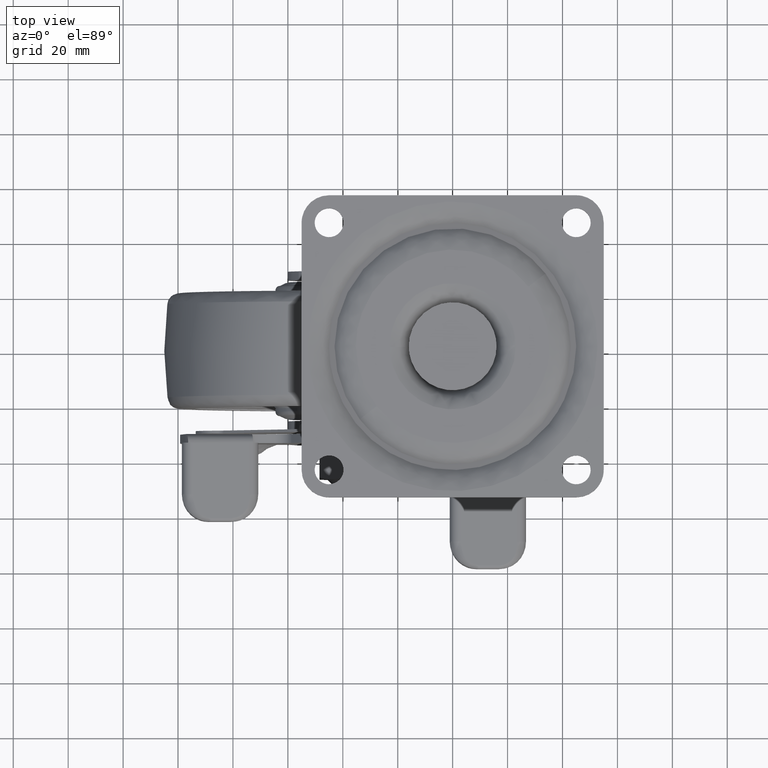
[diagram: clean part render]
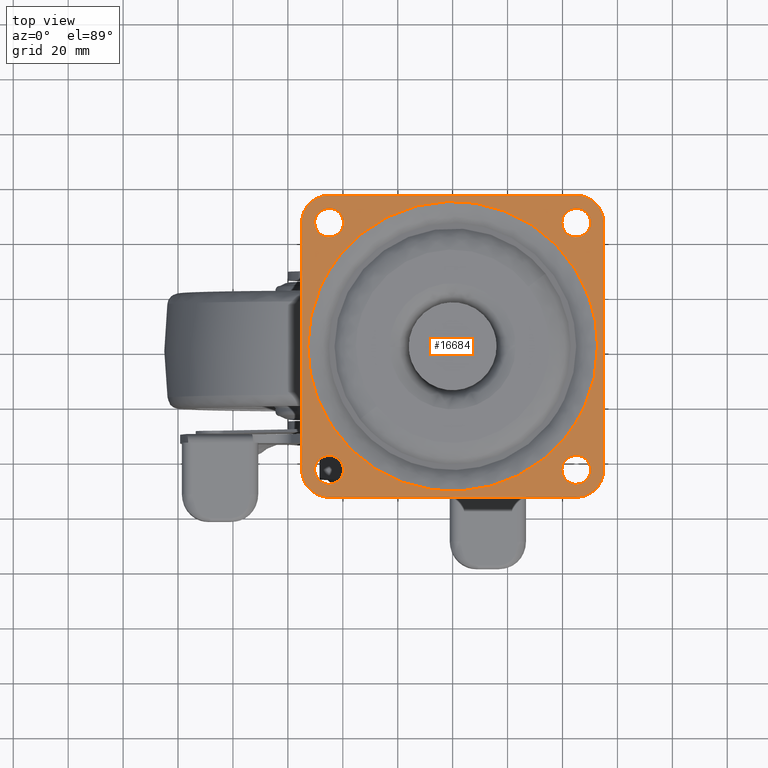
[diagram: same view with one face highlighted and labeled with its STEP entity id]
A machine part, top view. The second image highlights one B-rep face of the part: STEP entity #16684.
In plain terms, the highlighted face is a freeform B-spline surface patch.
Its self-contained STEP definition (entity closure, byte-faithful):
#15479=CARTESIAN_POINT('',(-45.320497108306242,39.759791835861151,3.611000E-013));
#15480=VERTEX_POINT('',#15479);
#15481=CARTESIAN_POINT('',(-39.750000000000000,45.0,0.0));
#15482=VERTEX_POINT('',#15481);
#15483=CARTESIAN_POINT('',(-45.320497108306242,39.759791835861151,3.611000E-013));
#15484=CARTESIAN_POINT('',(-45.160398134362772,39.750000000005613,3.559109E-013));
#15485=CARTESIAN_POINT('',(-44.999999999999652,39.750000000005521,3.503948E-013));
#15486=CARTESIAN_POINT('',(-39.749999999999829,39.750000000002686,1.698447E-013));
#15487=CARTESIAN_POINT('',(-39.750000000000000,45.0,0.0));
#15495=(BOUNDED_CURVE()B_SPLINE_CURVE(2,(#15483,#15484,#15485,#15486,#15487),.UNSPECIFIED.,.F.,.U.)B_SPLINE_CURVE_WITH_KNOTS((3,2,3),(0.239333216582096,0.250000000000000,0.500000000000000),.UNSPECIFIED.)CURVE()GEOMETRIC_REPRESENTATION_ITEM()RATIONAL_B_SPLINE_CURVE((0.976072586773118,0.987503085881377,1.0,0.707106781186547,1.0))REPRESENTATION_ITEM(''));
#15496=EDGE_CURVE('',#15480,#15482,#15495,.T.);
#15498=CARTESIAN_POINT('',(-44.679502891693758,50.240208164138849,3.606351E-013));
#15499=VERTEX_POINT('',#15498);
#15500=CARTESIAN_POINT('',(-39.750000000000000,45.0,0.0));
#15501=CARTESIAN_POINT('',(-39.750000000000171,49.938714144689023,1.803176E-013));
#15502=CARTESIAN_POINT('',(-44.679502891693758,50.240208164138849,3.606351E-013));
#15510=(BOUNDED_CURVE()B_SPLINE_CURVE(2,(#15500,#15501,#15502),.UNSPECIFIED.,.F.,.U.)B_SPLINE_CURVE_WITH_KNOTS((3,3),(0.500000000000000,0.739333216582097),.UNSPECIFIED.)CURVE()GEOMETRIC_REPRESENTATION_ITEM()RATIONAL_B_SPLINE_CURVE((1.0,0.719603695305170,0.976072586773119))REPRESENTATION_ITEM(''));
#15511=EDGE_CURVE('',#15482,#15499,#15510,.T.);
#15578=CARTESIAN_POINT('',(-50.249999999999993,45.0,0.0));
#15579=VERTEX_POINT('',#15578);
#15580=CARTESIAN_POINT('',(-50.249999999999993,45.0,0.0));
#15581=CARTESIAN_POINT('',(-50.249999999999801,40.061285855310992,1.805500E-013));
#15582=CARTESIAN_POINT('',(-45.320497108306249,39.759791835861151,3.611000E-013));
#15590=(BOUNDED_CURVE()B_SPLINE_CURVE(2,(#15580,#15581,#15582),.UNSPECIFIED.,.F.,.U.)B_SPLINE_CURVE_WITH_KNOTS((3,3),(0.0,0.239333216582097),.UNSPECIFIED.)CURVE()GEOMETRIC_REPRESENTATION_ITEM()RATIONAL_B_SPLINE_CURVE((1.0,0.719603695305170,0.976072586773118))REPRESENTATION_ITEM(''));
#15591=EDGE_CURVE('',#15579,#15480,#15590,.T.);
#15625=CARTESIAN_POINT('',(-44.679502891693758,50.240208164138849,3.606351E-013));
#15626=CARTESIAN_POINT('',(-44.839601865637221,50.249999999994387,3.554527E-013));
#15627=CARTESIAN_POINT('',(-45.000000000000327,50.249999999994479,3.499436E-013));
#15628=CARTESIAN_POINT('',(-50.250000000000156,50.249999999997314,1.696261E-013));
#15629=CARTESIAN_POINT('',(-50.249999999999993,45.0,0.0));
#15637=(BOUNDED_CURVE()B_SPLINE_CURVE(2,(#15625,#15626,#15627,#15628,#15629),.UNSPECIFIED.,.F.,.U.)B_SPLINE_CURVE_WITH_KNOTS((3,2,3),(0.739333216582097,0.750000000000000,1.0),.UNSPECIFIED.)CURVE()GEOMETRIC_REPRESENTATION_ITEM()RATIONAL_B_SPLINE_CURVE((0.976072586773119,0.987503085881377,1.0,0.707106781186547,1.0))REPRESENTATION_ITEM(''));
#15638=EDGE_CURVE('',#15499,#15579,#15637,.T.);
#15661=CARTESIAN_POINT('',(44.679502891693758,39.759791835861151,3.606351E-013));
#15662=VERTEX_POINT('',#15661);
#15663=CARTESIAN_POINT('',(50.249999999999993,45.0,0.0));
#15664=VERTEX_POINT('',#15663);
#15665=CARTESIAN_POINT('',(44.679502891693765,39.759791835861151,3.606351E-013));
#15666=CARTESIAN_POINT('',(44.839601865637221,39.750000000005613,3.554527E-013));
#15667=CARTESIAN_POINT('',(45.000000000000341,39.750000000005521,3.499436E-013));
#15668=CARTESIAN_POINT('',(50.250000000000156,39.750000000002686,1.696261E-013));
#15669=CARTESIAN_POINT('',(50.249999999999993,45.0,0.0));
#15677=(BOUNDED_CURVE()B_SPLINE_CURVE(2,(#15665,#15666,#15667,#15668,#15669),.UNSPECIFIED.,.F.,.U.)B_SPLINE_CURVE_WITH_KNOTS((3,2,3),(0.239333216582097,0.250000000000000,0.500000000000000),.UNSPECIFIED.)CURVE()GEOMETRIC_REPRESENTATION_ITEM()RATIONAL_B_SPLINE_CURVE((0.976072586773119,0.987503085881377,1.0,0.707106781186547,1.0))REPRESENTATION_ITEM(''));
#15678=EDGE_CURVE('',#15662,#15664,#15677,.T.);
#15680=CARTESIAN_POINT('',(45.320497108306242,50.240208164138849,3.606351E-013));
#15681=VERTEX_POINT('',#15680);
#15682=CARTESIAN_POINT('',(50.249999999999993,45.0,0.0));
#15683=CARTESIAN_POINT('',(50.249999999999808,49.938714144689008,1.803176E-013));
#15684=CARTESIAN_POINT('',(45.320497108306242,50.240208164138849,3.606351E-013));
#15692=(BOUNDED_CURVE()B_SPLINE_CURVE(2,(#15682,#15683,#15684),.UNSPECIFIED.,.F.,.U.)B_SPLINE_CURVE_WITH_KNOTS((3,3),(0.500000000000000,0.739333216582097),.UNSPECIFIED.)CURVE()GEOMETRIC_REPRESENTATION_ITEM()RATIONAL_B_SPLINE_CURVE((1.0,0.719603695305170,0.976072586773118))REPRESENTATION_ITEM(''));
#15693=EDGE_CURVE('',#15664,#15681,#15692,.T.);
#15760=CARTESIAN_POINT('',(39.750000000000000,45.0,0.0));
#15761=VERTEX_POINT('',#15760);
#15762=CARTESIAN_POINT('',(39.750000000000000,45.0,0.0));
#15763=CARTESIAN_POINT('',(39.750000000000163,40.061285855310985,1.803176E-013));
#15764=CARTESIAN_POINT('',(44.679502891693765,39.759791835861151,3.606351E-013));
#15772=(BOUNDED_CURVE()B_SPLINE_CURVE(2,(#15762,#15763,#15764),.UNSPECIFIED.,.F.,.U.)B_SPLINE_CURVE_WITH_KNOTS((3,3),(0.0,0.239333216582097),.UNSPECIFIED.)CURVE()GEOMETRIC_REPRESENTATION_ITEM()RATIONAL_B_SPLINE_CURVE((1.0,0.719603695305170,0.976072586773119))REPRESENTATION_ITEM(''));
#15773=EDGE_CURVE('',#15761,#15662,#15772,.T.);
#15807=CARTESIAN_POINT('',(45.320497108306242,50.240208164138849,3.606351E-013));
#15808=CARTESIAN_POINT('',(45.160398134362772,50.249999999994380,3.554527E-013));
#15809=CARTESIAN_POINT('',(44.999999999999652,50.249999999994479,3.499436E-013));
#15810=CARTESIAN_POINT('',(39.749999999999829,50.249999999997314,1.696261E-013));
#15811=CARTESIAN_POINT('',(39.750000000000000,45.0,0.0));
#15819=(BOUNDED_CURVE()B_SPLINE_CURVE(2,(#15807,#15808,#15809,#15810,#15811),.UNSPECIFIED.,.F.,.U.)B_SPLINE_CURVE_WITH_KNOTS((3,2,3),(0.739333216582097,0.750000000000000,1.0),.UNSPECIFIED.)CURVE()GEOMETRIC_REPRESENTATION_ITEM()RATIONAL_B_SPLINE_CURVE((0.976072586773118,0.987503085881377,1.0,0.707106781186547,1.0))REPRESENTATION_ITEM(''));
#15820=EDGE_CURVE('',#15681,#15761,#15819,.T.);
#15843=CARTESIAN_POINT('',(-45.320497108306242,-50.240208164138849,3.606351E-013));
#15844=VERTEX_POINT('',#15843);
#15845=CARTESIAN_POINT('',(-39.750000000000000,-45.0,0.0));
#15846=VERTEX_POINT('',#15845);
#15847=CARTESIAN_POINT('',(-45.320497108306242,-50.240208164138849,3.606351E-013));
#15848=CARTESIAN_POINT('',(-45.160398134362772,-50.249999999994380,3.554527E-013));
#15849=CARTESIAN_POINT('',(-44.999999999999652,-50.249999999994479,3.499436E-013));
#15850=CARTESIAN_POINT('',(-39.749999999999829,-50.249999999997314,1.696261E-013));
#15851=CARTESIAN_POINT('',(-39.750000000000000,-45.0,0.0));
#15859=(BOUNDED_CURVE()B_SPLINE_CURVE(2,(#15847,#15848,#15849,#15850,#15851),.UNSPECIFIED.,.F.,.U.)B_SPLINE_CURVE_WITH_KNOTS((3,2,3),(0.239333216582097,0.250000000000000,0.500000000000000),.UNSPECIFIED.)CURVE()GEOMETRIC_REPRESENTATION_ITEM()RATIONAL_B_SPLINE_CURVE((0.976072586773118,0.987503085881377,1.0,0.707106781186547,1.0))REPRESENTATION_ITEM(''));
#15860=EDGE_CURVE('',#15844,#15846,#15859,.T.);
#15862=CARTESIAN_POINT('',(-44.679502891693772,-39.759791835861151,3.601702E-013));
#15863=VERTEX_POINT('',#15862);
#15864=CARTESIAN_POINT('',(-39.750000000000000,-45.0,0.0));
#15865=CARTESIAN_POINT('',(-39.750000000000171,-40.061285855310985,1.800851E-013));
#15866=CARTESIAN_POINT('',(-44.679502891693765,-39.759791835861151,3.601702E-013));
#15874=(BOUNDED_CURVE()B_SPLINE_CURVE(2,(#15864,#15865,#15866),.UNSPECIFIED.,.F.,.U.)B_SPLINE_CURVE_WITH_KNOTS((3,3),(0.500000000000000,0.739333216582097),.UNSPECIFIED.)CURVE()GEOMETRIC_REPRESENTATION_ITEM()RATIONAL_B_SPLINE_CURVE((1.0,0.719603695305170,0.976072586773119))REPRESENTATION_ITEM(''));
#15875=EDGE_CURVE('',#15846,#15863,#15874,.T.);
#15942=CARTESIAN_POINT('',(-50.249999999999993,-45.0,0.0));
#15943=VERTEX_POINT('',#15942);
#15944=CARTESIAN_POINT('',(-50.249999999999993,-45.0,0.0));
#15945=CARTESIAN_POINT('',(-50.249999999999829,-49.938714144689023,1.803176E-013));
#15946=CARTESIAN_POINT('',(-45.320497108306235,-50.240208164138849,3.606351E-013));
#15954=(BOUNDED_CURVE()B_SPLINE_CURVE(2,(#15944,#15945,#15946),.UNSPECIFIED.,.F.,.U.)B_SPLINE_CURVE_WITH_KNOTS((3,3),(0.0,0.239333216582097),.UNSPECIFIED.)CURVE()GEOMETRIC_REPRESENTATION_ITEM()RATIONAL_B_SPLINE_CURVE((1.0,0.719603695305170,0.976072586773119))REPRESENTATION_ITEM(''));
#15955=EDGE_CURVE('',#15943,#15844,#15954,.T.);
#15989=CARTESIAN_POINT('',(-44.679502891693765,-39.759791835861151,3.601702E-013));
#15990=CARTESIAN_POINT('',(-44.839601865637221,-39.750000000005620,3.549945E-013));
#15991=CARTESIAN_POINT('',(-45.000000000000341,-39.750000000005521,3.494925E-013));
#15992=CARTESIAN_POINT('',(-50.250000000000156,-39.750000000002686,1.694074E-013));
#15993=CARTESIAN_POINT('',(-50.249999999999993,-45.0,0.0));
#16001=(BOUNDED_CURVE()B_SPLINE_CURVE(2,(#15989,#15990,#15991,#15992,#15993),.UNSPECIFIED.,.F.,.U.)B_SPLINE_CURVE_WITH_KNOTS((3,2,3),(0.739333216582097,0.750000000000000,1.0),.UNSPECIFIED.)CURVE()GEOMETRIC_REPRESENTATION_ITEM()RATIONAL_B_SPLINE_CURVE((0.976072586773119,0.987503085881378,1.0,0.707106781186547,1.0))REPRESENTATION_ITEM(''));
#16002=EDGE_CURVE('',#15863,#15943,#16001,.T.);
#16025=CARTESIAN_POINT('',(44.679502891693772,-50.240208164138849,3.601702E-013));
#16026=VERTEX_POINT('',#16025);
#16027=CARTESIAN_POINT('',(50.249999999999993,-45.0,0.0));
#16028=VERTEX_POINT('',#16027);
#16029=CARTESIAN_POINT('',(44.679502891693765,-50.240208164138849,3.601702E-013));
#16030=CARTESIAN_POINT('',(44.839601865637221,-50.249999999994394,3.549945E-013));
#16031=CARTESIAN_POINT('',(45.000000000000341,-50.249999999994472,3.494925E-013));
#16032=CARTESIAN_POINT('',(50.250000000000156,-50.249999999997314,1.694074E-013));
#16033=CARTESIAN_POINT('',(50.249999999999993,-45.0,0.0));
#16041=(BOUNDED_CURVE()B_SPLINE_CURVE(2,(#16029,#16030,#16031,#16032,#16033),.UNSPECIFIED.,.F.,.U.)B_SPLINE_CURVE_WITH_KNOTS((3,2,3),(0.239333216582097,0.250000000000000,0.500000000000000),.UNSPECIFIED.)CURVE()GEOMETRIC_REPRESENTATION_ITEM()RATIONAL_B_SPLINE_CURVE((0.976072586773119,0.987503085881378,1.0,0.707106781186547,1.0))REPRESENTATION_ITEM(''));
#16042=EDGE_CURVE('',#16026,#16028,#16041,.T.);
#16044=CARTESIAN_POINT('',(45.320497108306242,-39.759791835861151,3.606351E-013));
#16045=VERTEX_POINT('',#16044);
#16046=CARTESIAN_POINT('',(50.249999999999993,-45.0,0.0));
#16047=CARTESIAN_POINT('',(50.249999999999808,-40.061285855310999,1.803176E-013));
#16048=CARTESIAN_POINT('',(45.320497108306242,-39.759791835861144,3.606351E-013));
#16056=(BOUNDED_CURVE()B_SPLINE_CURVE(2,(#16046,#16047,#16048),.UNSPECIFIED.,.F.,.U.)B_SPLINE_CURVE_WITH_KNOTS((3,3),(0.500000000000000,0.739333216582097),.UNSPECIFIED.)CURVE()GEOMETRIC_REPRESENTATION_ITEM()RATIONAL_B_SPLINE_CURVE((1.0,0.719603695305170,0.976072586773118))REPRESENTATION_ITEM(''));
#16057=EDGE_CURVE('',#16028,#16045,#16056,.T.);
#16124=CARTESIAN_POINT('',(39.750000000000000,-45.0,0.0));
#16125=VERTEX_POINT('',#16124);
#16126=CARTESIAN_POINT('',(39.750000000000000,-45.0,0.0));
#16127=CARTESIAN_POINT('',(39.750000000000163,-49.938714144689001,1.800851E-013));
#16128=CARTESIAN_POINT('',(44.679502891693758,-50.240208164138849,3.601702E-013));
#16136=(BOUNDED_CURVE()B_SPLINE_CURVE(2,(#16126,#16127,#16128),.UNSPECIFIED.,.F.,.U.)B_SPLINE_CURVE_WITH_KNOTS((3,3),(0.0,0.239333216582097),.UNSPECIFIED.)CURVE()GEOMETRIC_REPRESENTATION_ITEM()RATIONAL_B_SPLINE_CURVE((1.0,0.719603695305170,0.976072586773119))REPRESENTATION_ITEM(''));
#16137=EDGE_CURVE('',#16125,#16026,#16136,.T.);
#16171=CARTESIAN_POINT('',(45.320497108306242,-39.759791835861144,3.606351E-013));
#16172=CARTESIAN_POINT('',(45.160398134362772,-39.750000000005613,3.554527E-013));
#16173=CARTESIAN_POINT('',(44.999999999999652,-39.750000000005528,3.499436E-013));
#16174=CARTESIAN_POINT('',(39.749999999999829,-39.750000000002686,1.696261E-013));
#16175=CARTESIAN_POINT('',(39.750000000000000,-45.0,0.0));
#16183=(BOUNDED_CURVE()B_SPLINE_CURVE(2,(#16171,#16172,#16173,#16174,#16175),.UNSPECIFIED.,.F.,.U.)B_SPLINE_CURVE_WITH_KNOTS((3,2,3),(0.739333216582097,0.750000000000000,1.0),.UNSPECIFIED.)CURVE()GEOMETRIC_REPRESENTATION_ITEM()RATIONAL_B_SPLINE_CURVE((0.976072586773118,0.987503085881377,1.0,0.707106781186547,1.0))REPRESENTATION_ITEM(''));
#16184=EDGE_CURVE('',#16045,#16125,#16183,.T.);
#16320=CARTESIAN_POINT('',(55.0,-45.0,0.0));
#16321=VERTEX_POINT('',#16320);
#16322=CARTESIAN_POINT('',(55.0,45.0,0.0));
#16323=VERTEX_POINT('',#16322);
#16324=CARTESIAN_POINT('',(55.0,-45.0,0.0));
#16325=CARTESIAN_POINT('',(55.0,45.0,0.0));
#16326=QUASI_UNIFORM_CURVE('',1,(#16324,#16325),.UNSPECIFIED.,.F.,.U.);
#16327=EDGE_CURVE('',#16321,#16323,#16326,.T.);
#16357=CARTESIAN_POINT('',(45.0,-55.0,0.0));
#16358=VERTEX_POINT('',#16357);
#16359=CARTESIAN_POINT('',(45.0,-55.0,0.0));
#16360=CARTESIAN_POINT('',(55.000000000000007,-55.000000000000007,0.0));
#16361=CARTESIAN_POINT('',(55.0,-45.0,0.0));
#16369=(BOUNDED_CURVE()B_SPLINE_CURVE(2,(#16359,#16360,#16361),.UNSPECIFIED.,.F.,.U.)CURVE()GEOMETRIC_REPRESENTATION_ITEM()QUASI_UNIFORM_CURVE()RATIONAL_B_SPLINE_CURVE((1.0,0.707106781186548,1.0))REPRESENTATION_ITEM(''));
#16370=EDGE_CURVE('',#16358,#16321,#16369,.T.);
#16387=CARTESIAN_POINT('',(-45.0,-55.0,0.0));
#16388=VERTEX_POINT('',#16387);
#16389=CARTESIAN_POINT('',(-45.0,-55.0,0.0));
#16390=CARTESIAN_POINT('',(45.0,-55.0,0.0));
#16391=QUASI_UNIFORM_CURVE('',1,(#16389,#16390),.UNSPECIFIED.,.F.,.U.);
#16392=EDGE_CURVE('',#16388,#16358,#16391,.T.);
#16418=CARTESIAN_POINT('',(-55.0,-45.0,0.0));
#16419=VERTEX_POINT('',#16418);
#16420=CARTESIAN_POINT('',(-55.0,-45.0,0.0));
#16421=CARTESIAN_POINT('',(-55.000000000000007,-55.000000000000007,0.0));
#16422=CARTESIAN_POINT('',(-45.0,-55.0,0.0));
#16430=(BOUNDED_CURVE()B_SPLINE_CURVE(2,(#16420,#16421,#16422),.UNSPECIFIED.,.F.,.U.)CURVE()GEOMETRIC_REPRESENTATION_ITEM()QUASI_UNIFORM_CURVE()RATIONAL_B_SPLINE_CURVE((1.0,0.707106781186548,1.0))REPRESENTATION_ITEM(''));
#16431=EDGE_CURVE('',#16419,#16388,#16430,.T.);
#16448=CARTESIAN_POINT('',(-55.0,45.0,0.0));
#16449=VERTEX_POINT('',#16448);
#16450=CARTESIAN_POINT('',(-55.0,45.0,0.0));
#16451=CARTESIAN_POINT('',(-55.0,-45.0,0.0));
#16452=QUASI_UNIFORM_CURVE('',1,(#16450,#16451),.UNSPECIFIED.,.F.,.U.);
#16453=EDGE_CURVE('',#16449,#16419,#16452,.T.);
#16479=CARTESIAN_POINT('',(-45.0,55.0,0.0));
#16480=VERTEX_POINT('',#16479);
#16481=CARTESIAN_POINT('',(-45.0,55.0,0.0));
#16482=CARTESIAN_POINT('',(-55.000000000000007,55.000000000000007,0.0));
#16483=CARTESIAN_POINT('',(-55.0,45.0,0.0));
#16491=(BOUNDED_CURVE()B_SPLINE_CURVE(2,(#16481,#16482,#16483),.UNSPECIFIED.,.F.,.U.)CURVE()GEOMETRIC_REPRESENTATION_ITEM()QUASI_UNIFORM_CURVE()RATIONAL_B_SPLINE_CURVE((1.0,0.707106781186548,1.0))REPRESENTATION_ITEM(''));
#16492=EDGE_CURVE('',#16480,#16449,#16491,.T.);
#16509=CARTESIAN_POINT('',(45.0,55.0,0.0));
#16510=VERTEX_POINT('',#16509);
#16511=CARTESIAN_POINT('',(45.0,55.0,0.0));
#16512=CARTESIAN_POINT('',(-45.0,55.0,0.0));
#16513=QUASI_UNIFORM_CURVE('',1,(#16511,#16512),.UNSPECIFIED.,.F.,.U.);
#16514=EDGE_CURVE('',#16510,#16480,#16513,.T.);
#16540=CARTESIAN_POINT('',(55.0,45.0,0.0));
#16541=CARTESIAN_POINT('',(55.000000000000007,55.000000000000007,0.0));
#16542=CARTESIAN_POINT('',(45.0,55.0,0.0));
#16550=(BOUNDED_CURVE()B_SPLINE_CURVE(2,(#16540,#16541,#16542),.UNSPECIFIED.,.F.,.U.)CURVE()GEOMETRIC_REPRESENTATION_ITEM()QUASI_UNIFORM_CURVE()RATIONAL_B_SPLINE_CURVE((1.0,0.707106781186548,1.0))REPRESENTATION_ITEM(''));
#16551=EDGE_CURVE('',#16323,#16510,#16550,.T.);
#16559=CARTESIAN_POINT('',(-60.494499786798663,60.494499786798663,0.0));
#16560=CARTESIAN_POINT('',(60.494502737228572,60.494499786798663,0.0));
#16561=CARTESIAN_POINT('',(-60.494499786798663,-60.494502737228572,0.0));
#16562=CARTESIAN_POINT('',(60.494502737228572,-60.494502737228572,0.0));
#16563=B_SPLINE_SURFACE_WITH_KNOTS('',1,1,((#16559,#16561),(#16560,#16562)),.UNSPECIFIED.,.F.,.F.,.U.,(2,2),(2,2),(0.0,120.989002524027200),(0.0,120.989002524027200),.UNSPECIFIED.);
#16564=ORIENTED_EDGE('',*,*,#16551,.T.);
#16565=ORIENTED_EDGE('',*,*,#16514,.T.);
#16566=ORIENTED_EDGE('',*,*,#16492,.T.);
#16567=ORIENTED_EDGE('',*,*,#16453,.T.);
#16568=ORIENTED_EDGE('',*,*,#16431,.T.);
#16569=ORIENTED_EDGE('',*,*,#16392,.T.);
#16570=ORIENTED_EDGE('',*,*,#16370,.T.);
#16571=ORIENTED_EDGE('',*,*,#16327,.T.);
#16572=EDGE_LOOP('',(#16564,#16565,#16566,#16567,#16568,#16569,#16570,#16571));
#16573=FACE_OUTER_BOUND('',#16572,.T.);
#16574=CARTESIAN_POINT('',(-52.765951326141597,0.0,0.0));
#16575=VERTEX_POINT('',#16574);
#16576=CARTESIAN_POINT('',(-41.076303911925663,33.120731816367233,-1.936620E-015));
#16577=VERTEX_POINT('',#16576);
#16578=CARTESIAN_POINT('',(-52.765951326141597,0.0,0.0));
#16579=CARTESIAN_POINT('',(-52.765951325270642,18.623240867888434,-9.683098E-016));
#16580=CARTESIAN_POINT('',(-41.076303911925670,33.120731816367226,-1.936620E-015));
#16588=(BOUNDED_CURVE()B_SPLINE_CURVE(2,(#16578,#16579,#16580),.UNSPECIFIED.,.F.,.U.)B_SPLINE_CURVE_WITH_KNOTS((3,3),(0.0,0.108867648263806),.UNSPECIFIED.)CURVE()GEOMETRIC_REPRESENTATION_ITEM()RATIONAL_B_SPLINE_CURVE((1.0,0.872453616301453,0.855992631305416))REPRESENTATION_ITEM(''));
#16589=EDGE_CURVE('',#16575,#16577,#16588,.T.);
#16590=ORIENTED_EDGE('',*,*,#16589,.T.);
#16591=CARTESIAN_POINT('',(52.765951326141597,0.0,0.0));
#16592=VERTEX_POINT('',#16591);
#16593=CARTESIAN_POINT('',(-41.076303911925663,33.120731816367233,-1.936620E-015));
#16594=CARTESIAN_POINT('',(-38.686858770094112,36.085240381845693,-1.911971E-015));
#16595=CARTESIAN_POINT('',(-34.949716331230377,39.810324650319352,-1.867518E-015));
#16596=CARTESIAN_POINT('',(-29.222182849721900,44.028736856918613,-1.789733E-015));
#16597=CARTESIAN_POINT('',(-24.646639142472772,46.778010295548071,-1.723574E-015));
#16598=CARTESIAN_POINT('',(-19.409055999646998,49.182596356807473,-1.643033E-015));
#16599=CARTESIAN_POINT('',(-13.858996181808919,51.020253595223529,-1.553086E-015));
#16600=CARTESIAN_POINT('',(-7.313711084912022,52.425945772920933,-1.442078E-015));
#16601=CARTESIAN_POINT('',(-0.033042290069284,52.968692238123069,-1.311985E-015));
#16602=CARTESIAN_POINT('',(8.169777129732029,52.334905103307072,-1.157350E-015));
#16603=CARTESIAN_POINT('',(15.197945836082750,50.699267553770007,-1.017782E-015));
#16604=CARTESIAN_POINT('',(22.088223571205489,48.079384984174467,-8.743697E-016));
#16605=CARTESIAN_POINT('',(27.401155286317788,45.239889026085052,-7.584810E-016));
#16606=CARTESIAN_POINT('',(32.542695232757048,41.656351336101423,-6.409185E-016));
#16607=CARTESIAN_POINT('',(37.098475979854037,37.723843791316959,-5.318451E-016));
#16608=CARTESIAN_POINT('',(41.855397249596102,32.421393775702668,-4.102076E-016));
#16609=CARTESIAN_POINT('',(45.769290316050594,26.566867872565108,-3.004649E-016));
#16610=CARTESIAN_POINT('',(48.536641627032743,20.938716233623008,-2.132286E-016));
#16611=CARTESIAN_POINT('',(50.501569559262727,15.614871000163429,-1.426885E-016));
#16612=CARTESIAN_POINT('',(52.243124445229611,8.799413898627691,-6.658666E-017));
#16613=CARTESIAN_POINT('',(52.766343508550072,3.384477488425749,-2.191347E-017));
#16614=CARTESIAN_POINT('',(52.765951326141597,0.0,0.0));
#16615=B_SPLINE_CURVE_WITH_KNOTS('',3,(#16593,#16594,#16595,#16596,#16597,#16598,#16599,#16600,#16601,#16602,#16603,#16604,#16605,#16606,#16607,#16608,#16609,#16610,#16611,#16612,#16613,#16614),.UNSPECIFIED.,.F.,.U.,(4,1,1,1,1,1,1,1,1,1,1,1,1,1,1,1,1,1,1,4),(0.000000166802465,11.422557954182111,15.737756988969711,21.322100588737751,27.414161501762649,32.998538122727822,38.836736143446032,47.466989812296731,54.828136743403661,63.458483853025733,69.042838710014053,76.911730275583551,81.480778815637109,87.826641497606943,94.934009987344069,102.802872139892900,108.894934632711000,113.717814739219510,119.809770675139700,129.963119347347910),.UNSPECIFIED.);
#16616=EDGE_CURVE('',#16577,#16592,#16615,.T.);
#16617=ORIENTED_EDGE('',*,*,#16616,.T.);
#16618=CARTESIAN_POINT('',(41.076303911925663,-33.120731816367240,-2.057658E-015));
#16619=VERTEX_POINT('',#16618);
#16620=CARTESIAN_POINT('',(52.765951326141597,0.0,0.0));
#16621=CARTESIAN_POINT('',(52.765951325270642,-18.623240867888434,-1.028829E-015));
#16622=CARTESIAN_POINT('',(41.076303911925670,-33.120731816367240,-2.057658E-015));
#16630=(BOUNDED_CURVE()B_SPLINE_CURVE(2,(#16620,#16621,#16622),.UNSPECIFIED.,.F.,.U.)B_SPLINE_CURVE_WITH_KNOTS((3,3),(0.500000000000000,0.608867648263806),.UNSPECIFIED.)CURVE()GEOMETRIC_REPRESENTATION_ITEM()RATIONAL_B_SPLINE_CURVE((1.0,0.872453616301453,0.855992631305416))REPRESENTATION_ITEM(''));
#16631=EDGE_CURVE('',#16592,#16619,#16630,.T.);
#16632=ORIENTED_EDGE('',*,*,#16631,.T.);
#16633=CARTESIAN_POINT('',(41.076303911925663,-33.120731816367240,-2.057658E-015));
#16634=CARTESIAN_POINT('',(38.739932786400573,-36.019333185941107,-2.032051E-015));
#16635=CARTESIAN_POINT('',(34.652016167945668,-40.113705532778667,-1.980521E-015));
#16636=CARTESIAN_POINT('',(27.699231516746408,-45.107036523376479,-1.879318E-015));
#16637=CARTESIAN_POINT('',(21.769424248774779,-48.237412702652293,-1.785241E-015));
#16638=CARTESIAN_POINT('',(15.330417073047240,-50.612706093659867,-1.676039E-015));
#16639=CARTESIAN_POINT('',(8.245129257884916,-52.331743499350488,-1.549720E-015));
#16640=CARTESIAN_POINT('',(0.371309008418967,-52.994992253621170,-1.400761E-015));
#16641=CARTESIAN_POINT('',(-6.901244984339407,-52.432745153808611,-1.255091E-015));
#16642=CARTESIAN_POINT('',(-13.136311505534399,-51.217014882450570,-1.125154E-015));
#16643=CARTESIAN_POINT('',(-18.800861233966160,-49.444854052294147,-1.002511E-015));
#16644=CARTESIAN_POINT('',(-24.049215493252859,-47.063872855232717,-8.837941E-016));
#16645=CARTESIAN_POINT('',(-28.960254088869831,-44.222622249091309,-7.684864E-016));
#16646=CARTESIAN_POINT('',(-33.213809036197183,-41.134799050797881,-6.643014E-016));
#16647=CARTESIAN_POINT('',(-37.858591117593242,-36.926286974439542,-5.447762E-016));
#16648=CARTESIAN_POINT('',(-41.378722338401822,-32.906150126078153,-4.484757E-016));
#16649=CARTESIAN_POINT('',(-44.643859554254817,-28.267386151615160,-3.528899E-016));
#16650=CARTESIAN_POINT('',(-47.770585223464032,-22.831617780940910,-2.545181E-016));
#16651=CARTESIAN_POINT('',(-50.353868159634537,-16.364322007499560,-1.596439E-016));
#16652=CARTESIAN_POINT('',(-52.292687540367979,-8.376345941851218,-6.687055E-017));
#16653=CARTESIAN_POINT('',(-52.766259192506681,-3.215220887279643,-2.211994E-017));
#16654=CARTESIAN_POINT('',(-52.765951326141597,0.0,0.0));
#16655=B_SPLINE_CURVE_WITH_KNOTS('',3,(#16633,#16634,#16635,#16636,#16637,#16638,#16639,#16640,#16641,#16642,#16643,#16644,#16645,#16646,#16647,#16648,#16649,#16650,#16651,#16652,#16653,#16654),.UNSPECIFIED.,.F.,.U.,(4,1,1,1,1,1,1,1,1,1,1,1,1,1,1,1,1,1,1,4),(0.000000166848565,11.168713940239090,17.260770168475460,25.637268761258721,31.221674262060091,37.821390367078472,47.466989812321273,54.828136743425929,59.650939916850142,66.504553228527413,72.596530418383153,76.911730275598231,83.511457607603646,88.334310450964352,95.695518740416645,99.503055788147691,105.341261995431300,114.479318467062300,120.317517708882210,129.963119347348000),.UNSPECIFIED.);
#16656=EDGE_CURVE('',#16619,#16575,#16655,.T.);
#16657=ORIENTED_EDGE('',*,*,#16656,.T.);
#16658=EDGE_LOOP('',(#16590,#16617,#16632,#16657));
#16659=FACE_BOUND('',#16658,.T.);
#16660=ORIENTED_EDGE('',*,*,#16057,.F.);
#16661=ORIENTED_EDGE('',*,*,#16042,.F.);
#16662=ORIENTED_EDGE('',*,*,#16137,.F.);
#16663=ORIENTED_EDGE('',*,*,#16184,.F.);
#16664=EDGE_LOOP('',(#16660,#16661,#16662,#16663));
#16665=FACE_BOUND('',#16664,.T.);
#16666=ORIENTED_EDGE('',*,*,#15875,.F.);
#16667=ORIENTED_EDGE('',*,*,#15860,.F.);
#16668=ORIENTED_EDGE('',*,*,#15955,.F.);
#16669=ORIENTED_EDGE('',*,*,#16002,.F.);
#16670=EDGE_LOOP('',(#16666,#16667,#16668,#16669));
#16671=FACE_BOUND('',#16670,.T.);
#16672=ORIENTED_EDGE('',*,*,#15693,.F.);
#16673=ORIENTED_EDGE('',*,*,#15678,.F.);
#16674=ORIENTED_EDGE('',*,*,#15773,.F.);
#16675=ORIENTED_EDGE('',*,*,#15820,.F.);
#16676=EDGE_LOOP('',(#16672,#16673,#16674,#16675));
#16677=FACE_BOUND('',#16676,.T.);
#16678=ORIENTED_EDGE('',*,*,#15511,.F.);
#16679=ORIENTED_EDGE('',*,*,#15496,.F.);
#16680=ORIENTED_EDGE('',*,*,#15591,.F.);
#16681=ORIENTED_EDGE('',*,*,#15638,.F.);
#16682=EDGE_LOOP('',(#16678,#16679,#16680,#16681));
#16683=FACE_BOUND('',#16682,.T.);
#16684=ADVANCED_FACE('',(#16573,#16659,#16665,#16671,#16677,#16683),#16563,.F.);